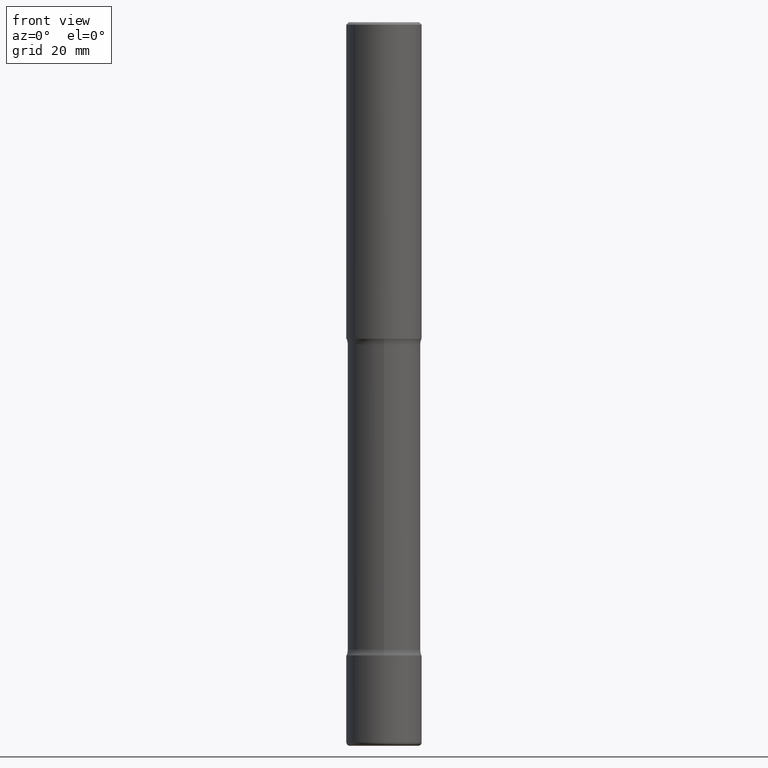
[diagram: clean part render]
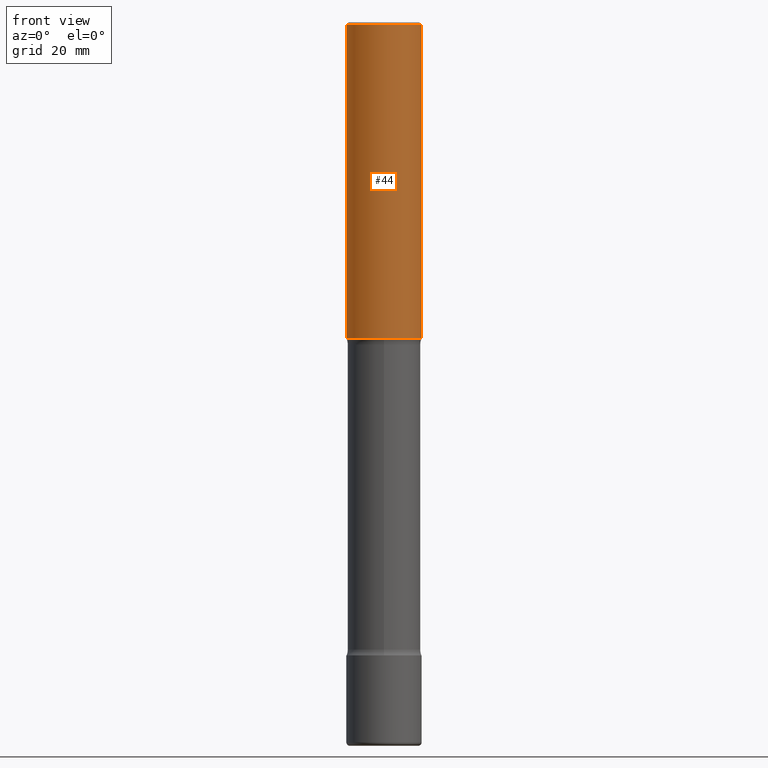
[diagram: same view with one face highlighted and labeled with its STEP entity id]
A machine part, front view. The second image highlights one B-rep face of the part: STEP entity #44.
In plain terms, the highlighted cylindrical surface (partial cylindrical patch) has radius 7.9375 mm, axis along (-0, 0, 1).
Its self-contained STEP definition (entity closure, byte-faithful):
#3 = VECTOR ( 'NONE', #497, 39.37007874015748143 ) ;
#6 = EDGE_CURVE ( 'NONE', #107, #528, #229, .T. ) ;
#7 = EDGE_LOOP ( 'NONE', ( #242, #445, #331, #189 ) ) ;
#17 = EDGE_CURVE ( 'NONE', #279, #203, #368, .T. ) ;
#38 = CARTESIAN_POINT ( 'NONE',  ( 0.000000000000000000, 0.000000000000000000, 0.000000000000000000 ) ) ;
#44 = ADVANCED_FACE ( 'NONE', ( #465 ), #550, .T. ) ;
#50 = CARTESIAN_POINT ( 'NONE',  ( -0.3125000000000005551, 2.112346210000099388E-15, -0.02000000000000000042 ) ) ;
#54 = AXIS2_PLACEMENT_3D ( 'NONE', #195, #148, #486 ) ;
#62 = CARTESIAN_POINT ( 'NONE',  ( -0.3125000000000007216, 2.220446049250318208E-15, -1.537167215704661595E-29 ) ) ;
#107 = VERTEX_POINT ( 'NONE', #50 ) ;
#108 = LINE ( 'NONE', #62, #214 ) ;
#148 = DIRECTION ( 'NONE',  ( -2.445468806185136597E-29, 3.491481338843145583E-15, 1.000000000000000000 ) ) ;
#189 = ORIENTED_EDGE ( 'NONE', *, *, #6, .F. ) ;
#195 = CARTESIAN_POINT ( 'NONE',  ( 4.890937612370273159E-31, -6.982962677686291609E-17, -0.02000000000000000042 ) ) ;
#201 = CARTESIAN_POINT ( 'NONE',  ( 6.419355616235983567E-29, -9.165138514463256612E-15, -2.625000000000000000 ) ) ;
#203 = VERTEX_POINT ( 'NONE', #427 ) ;
#214 = VECTOR ( 'NONE', #236, 39.37007874015748143 ) ;
#229 = CIRCLE ( 'NONE', #54, 0.3125000000000005551 ) ;
#234 = CARTESIAN_POINT ( 'NONE',  ( -0.3125000000000008327, -2.397038021369739380E-15, -2.625000000000000000 ) ) ;
#236 = DIRECTION ( 'NONE',  ( -2.445468806185136877E-29, 3.491481338843145188E-15, 1.000000000000000000 ) ) ;
#242 = ORIENTED_EDGE ( 'NONE', *, *, #491, .F. ) ;
#279 = VERTEX_POINT ( 'NONE', #234 ) ;
#290 = DIRECTION ( 'NONE',  ( 1.000000000000000000, -6.982962677686265922E-15, 4.876176775795935793E-29 ) ) ;
#299 = DIRECTION ( 'NONE',  ( -2.445468806185136597E-29, 3.491481338843145583E-15, 1.000000000000000000 ) ) ;
#301 = DIRECTION ( 'NONE',  ( -2.445468806185136597E-29, 3.491481338843145583E-15, 1.000000000000000000 ) ) ;
#331 = ORIENTED_EDGE ( 'NONE', *, *, #462, .T. ) ;
#368 = CIRCLE ( 'NONE', #420, 0.3125000000000008327 ) ;
#420 = AXIS2_PLACEMENT_3D ( 'NONE', #201, #299, #422 ) ;
#422 = DIRECTION ( 'NONE',  ( 1.000000000000000000, -6.982962677686269866E-15, 0.000000000000000000 ) ) ;
#427 = CARTESIAN_POINT ( 'NONE',  ( 0.3125000000000008327, -1.134731435124022127E-14, -2.625000000000000000 ) ) ;
#435 = AXIS2_PLACEMENT_3D ( 'NONE', #38, #301, #290 ) ;
#445 = ORIENTED_EDGE ( 'NONE', *, *, #17, .T. ) ;
#453 = LINE ( 'NONE', #543, #3 ) ;
#462 = EDGE_CURVE ( 'NONE', #203, #528, #453, .T. ) ;
#465 = FACE_OUTER_BOUND ( 'NONE', #7, .T. ) ;
#475 = CARTESIAN_POINT ( 'NONE',  ( 0.3125000000000005551, -2.213735251080470461E-15, -0.02000000000000000042 ) ) ;
#486 = DIRECTION ( 'NONE',  ( 1.000000000000000000, -6.982962677686268288E-15, 0.000000000000000000 ) ) ;
#491 = EDGE_CURVE ( 'NONE', #279, #107, #108, .T. ) ;
#497 = DIRECTION ( 'NONE',  ( -2.445468806185136877E-29, 3.491481338843145188E-15, 1.000000000000000000 ) ) ;
#528 = VERTEX_POINT ( 'NONE', #475 ) ;
#543 = CARTESIAN_POINT ( 'NONE',  ( 0.3125000000000007216, -2.182175836776963080E-15, 1.523805242436233439E-29 ) ) ;
#550 = CYLINDRICAL_SURFACE ( 'NONE', #435, 0.3125000000000007216 ) ;